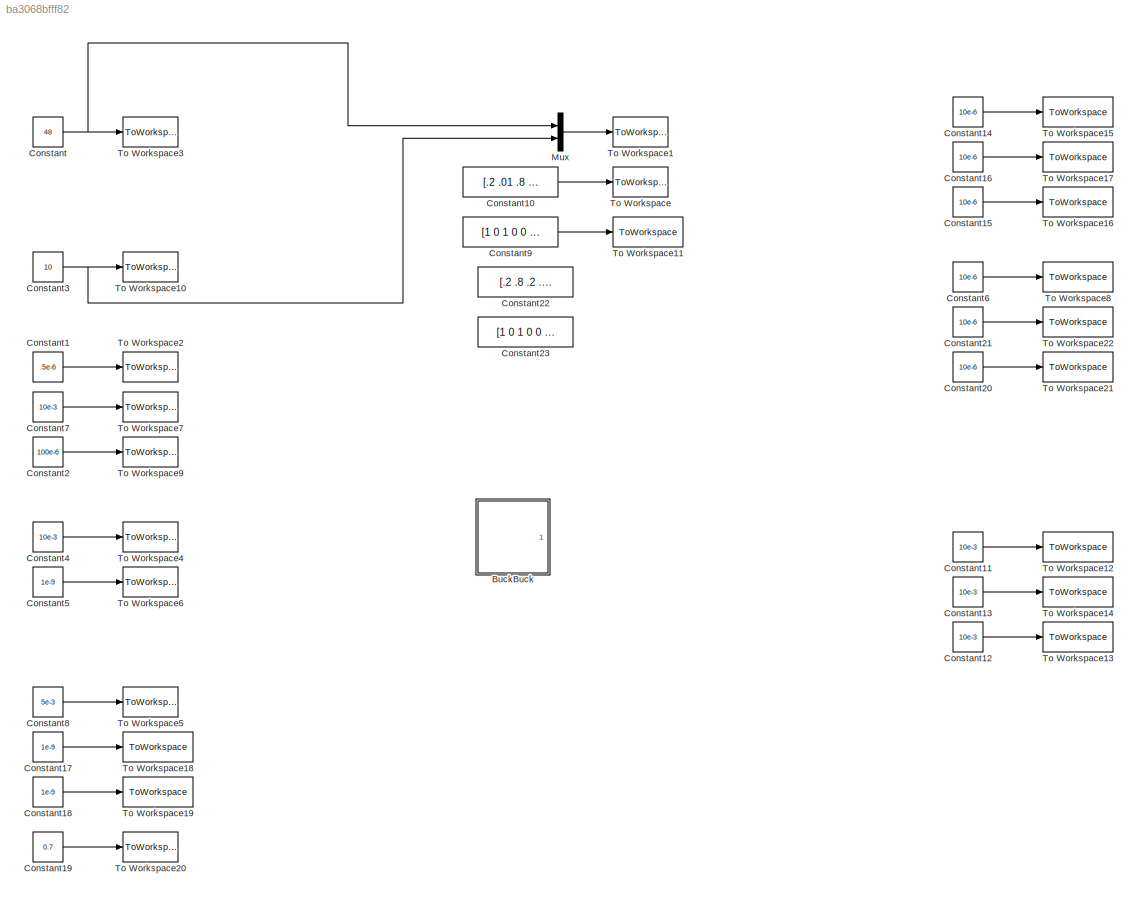
MODEL slx_ba3068bfff82
KIND model
CONFIG AbsTol = auto
CONFIG EnableMultiTasking = off
CONFIG FixedStep = auto
CONFIG MaxStep = auto
CONFIG MinStep = auto
CONFIG RelTol = 1e-3
CONFIG SampleTimeConstraint = Unconstrained
CONFIG SolverName = VariableStepAuto
CONFIG StartTime = 0.0
CONFIG StopTime = 10.0
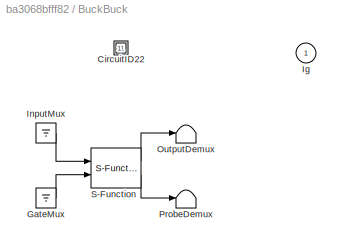
BLOCK [SubSystem] BuckBuck
  CopyFcn = plecs('sl', 203);
  DeleteFcn = plecs('sl', 205);
  DestroyFcn = plecs('sl', 207);
  ErrorFcn = plerrorfcn
  InitFcn = plecs('sl', 214);
  LoadFcn = plecs('sl', 200);
  NameChangeFcn = plecs('sl', 210);
  OpenFcn = plecs('sl', 202);
  Ports = [0, 1]
  PostSaveFcn = plecs('sl', 201);
  PreCopyFcn = plecs('sl', 216);
  PreSaveFcn = plecs('sl', 211);
  RequestExecContextInheritance = off
  StartFcn = plecs('sl', 208);
  StopFcn = plecs('sl', 209);
  UndoDeleteFcn = plecs('sl', 206);
BLOCK [SubSystem] BuckBuck/ CircuitID22 
  Ports = []
  RequestExecContextInheritance = off
BLOCK [Ground] BuckBuck/ GateMux 
BLOCK [Ground] BuckBuck/ InputMux 
BLOCK [Terminator] BuckBuck/ OutputDemux 
BLOCK [Terminator] BuckBuck/ ProbeDemux 
BLOCK [S-Function] BuckBuck/ S-Function 
  EnableBusSupport = off
  FunctionName = plecs
  Ports = [2, 2]
  SFcnIsStateOwnerBlock = off
  SFunctionDeploymentMode = off
BLOCK [Outport] BuckBuck/Ig
  PortDimensions = 1
  VectorParamsAs1DForOutWhenUnconnected = off
BLOCK [Constant] Constant
  Value = 48
BLOCK [Constant] Constant1
  Value = .5e-6
BLOCK [Constant] Constant10
  Value = [.2 .01 .8 .01 .2 .01 .8 .01]*.5e-6
BLOCK [Constant] Constant11
  Value = 10e-3
BLOCK [Constant] Constant12
  Value = 10e-3
BLOCK [Constant] Constant13
  Value = 10e-3
BLOCK [Constant] Constant14
  Value = 10e-6
BLOCK [Constant] Constant15
  Value = 10e-6
BLOCK [Constant] Constant16
  Value = 10e-6
BLOCK [Constant] Constant17
  Value = 1e-9
BLOCK [Constant] Constant18
  Value = 1e-9
BLOCK [Constant] Constant19
  Value = 0.7
BLOCK [Constant] Constant2
  Value = 100e-6
BLOCK [Constant] Constant20
  Value = 10e-6
BLOCK [Constant] Constant21
  Value = 10e-6
BLOCK [Constant] Constant22
  Commented = on
  Value = [.2 .8 .2 .8]*.5e-6
BLOCK [Constant] Constant23
  Commented = on
  Value = [1 0 1 0 0 0 0 1 0 0 0 0 0 0 0; 0 0 0 1 0 0 0 1 1 0 0 0 0 0 0; 0 1 0 1 0 0 0 0 1 0 0 0 0 0 0; 0 0 0 1 0 0 0 1 1 0 0 0 0 0 0; ] + [0 0 0 0 1 0 0 0 0 1 0 0 0 1 1; 0 0 0 0 1 0 0 0 0 1 0 0 0 1 1; 0 0 0 0 0 1 1 0 0 0 1 1 1 0 0;  0 0 0 0 0 1 1 0 0 0 1 1 1 0 0]
BLOCK [Constant] Constant3
  Value = 10
BLOCK [Constant] Constant4
  Value = 10e-3
BLOCK [Constant] Constant5
  Value = 1e-9
BLOCK [Constant] Constant6
  Value = 10e-6
BLOCK [Constant] Constant7
  Value = 10e-3
BLOCK [Constant] Constant8
  Value = 5e-3
BLOCK [Constant] Constant9
  Value = [1 0 1 0 0 0 0 1 0 0 0 0 0 0 0; 0 0 0 0 0 0 0 0 0 0 0 0 0 0 0; 0 0 0 1 0 0 0 1 1 0 0 0 0 0 0; 0 0 0 0 0 0 0 0 0 0 0 0 0 0 0; 0 1 0 1 0 0 0 0 1 0 0 0 0 0 0; 0 0 0 0 0 0 0 0 0 0 0 0 0 0 0; 0 0 0 1 0 0 0 1 1 0 0 0 0 0 0; 0 0 0 0 0 0 0 0 0 0 0 0 0 0 0;] + [0 0 0 0 1 0 0 0 0 1 0 0 0 1 1; 0 0 0 0 1 0 0 0 0 1 0 0 0 1 1; 0 0 0 0 1 0 0 0 0 1 0 0 0 1 1;  0 0 0 0 0 0 0 0 0 0 0 0 0 0 0; 0 0 0 0 0 1 1 0 0 0 1 ...<+102ch>
BLOCK [Mux] Mux
  DisplayOption = bar
  Inputs = 2
  Ports = [2, 1]
BLOCK [ToWorkspace] To Workspace
  FixptAsFi = on
  MaxDataPoints = inf
  Ports = [1]
  SampleTime = -1
  VariableName = ts
BLOCK [ToWorkspace] To Workspace1
  FixptAsFi = on
  MaxDataPoints = inf
  Ports = [1]
  SampleTime = -1
  VariableName = us
BLOCK [ToWorkspace] To Workspace10
  FixptAsFi = on
  MaxDataPoints = inf
  Ports = [1]
  SampleTime = -1
  VariableName = Iout
BLOCK [ToWorkspace] To Workspace11
  FixptAsFi = on
  MaxDataPoints = inf
  Ports = [1]
  SampleTime = -1
  VariableName = swvec
BLOCK [ToWorkspace] To Workspace12
  FixptAsFi = on
  MaxDataPoints = inf
  Ports = [1]
  SampleTime = -1
  VariableName = ESR1
BLOCK [ToWorkspace] To Workspace13
  FixptAsFi = on
  MaxDataPoints = inf
  Ports = [1]
  SampleTime = -1
  VariableName = ESR3
BLOCK [ToWorkspace] To Workspace14
  FixptAsFi = on
  MaxDataPoints = inf
  Ports = [1]
  SampleTime = -1
  VariableName = ESR2
BLOCK [ToWorkspace] To Workspace15
  FixptAsFi = on
  MaxDataPoints = inf
  Ports = [1]
  SampleTime = -1
  VariableName = C1
BLOCK [ToWorkspace] To Workspace16
  FixptAsFi = on
  MaxDataPoints = inf
  Ports = [1]
  SampleTime = -1
  VariableName = C3
BLOCK [ToWorkspace] To Workspace17
  FixptAsFi = on
  MaxDataPoints = inf
  Ports = [1]
  SampleTime = -1
  VariableName = C2
BLOCK [ToWorkspace] To Workspace18
  FixptAsFi = on
  MaxDataPoints = inf
  Ports = [1]
  SampleTime = -1
  VariableName = Coss6
BLOCK [ToWorkspace] To Workspace19
  FixptAsFi = on
  MaxDataPoints = inf
  Ports = [1]
  SampleTime = -1
  VariableName = Coss12
BLOCK [ToWorkspace] To Workspace2
  FixptAsFi = on
  MaxDataPoints = inf
  Ports = [1]
  SampleTime = -1
  VariableName = L
BLOCK [ToWorkspace] To Workspace20
  FixptAsFi = on
  MaxDataPoints = inf
  Ports = [1]
  SampleTime = -1
  VariableName = Vf
BLOCK [ToWorkspace] To Workspace21
  FixptAsFi = on
  MaxDataPoints = inf
  Ports = [1]
  SampleTime = -1
  VariableName = C6
BLOCK [ToWorkspace] To Workspace22
  FixptAsFi = on
  MaxDataPoints = inf
  Ports = [1]
  SampleTime = -1
  VariableName = C4
BLOCK [ToWorkspace] To Workspace3
  FixptAsFi = on
  MaxDataPoints = inf
  Ports = [1]
  SampleTime = -1
  VariableName = Vg
BLOCK [ToWorkspace] To Workspace4
  FixptAsFi = on
  MaxDataPoints = inf
  Ports = [1]
  SampleTime = -1
  VariableName = Rin
BLOCK [ToWorkspace] To Workspace5
  FixptAsFi = on
  MaxDataPoints = inf
  Ports = [1]
  SampleTime = -1
  VariableName = ron
BLOCK [ToWorkspace] To Workspace6
  FixptAsFi = on
  MaxDataPoints = inf
  Ports = [1]
  SampleTime = -1
  VariableName = Cd
BLOCK [ToWorkspace] To Workspace7
  FixptAsFi = on
  MaxDataPoints = inf
  Ports = [1]
  SampleTime = -1
  VariableName = RL
BLOCK [ToWorkspace] To Workspace8
  FixptAsFi = on
  MaxDataPoints = inf
  Ports = [1]
  SampleTime = -1
  VariableName = C5
BLOCK [ToWorkspace] To Workspace9
  FixptAsFi = on
  MaxDataPoints = inf
  Ports = [1]
  SampleTime = -1
  VariableName = Cout
LINE Constant10:1 -> To Workspace:1
LINE Constant11:1 -> To Workspace12:1
LINE Constant12:1 -> To Workspace13:1
LINE Constant13:1 -> To Workspace14:1
LINE Constant14:1 -> To Workspace15:1
LINE Constant15:1 -> To Workspace16:1
LINE Constant16:1 -> To Workspace17:1
LINE Constant17:1 -> To Workspace18:1
LINE Constant18:1 -> To Workspace19:1
LINE Constant19:1 -> To Workspace20:1
LINE Constant1:1 -> To Workspace2:1
LINE Constant20:1 -> To Workspace21:1
LINE Constant21:1 -> To Workspace22:1
LINE Constant2:1 -> To Workspace9:1
NET Constant3:1 -> Mux:2, To Workspace10:1
LINE Constant4:1 -> To Workspace4:1
LINE Constant5:1 -> To Workspace6:1
LINE Constant6:1 -> To Workspace8:1
LINE Constant7:1 -> To Workspace7:1
LINE Constant8:1 -> To Workspace5:1
LINE Constant9:1 -> To Workspace11:1
NET Constant:1 -> Mux:1, To Workspace3:1
LINE Mux:1 -> To Workspace1:1
note: NET lines group one-source signal fan-out (src -> all destinations, sorted); 1:1 wires keep LINE
